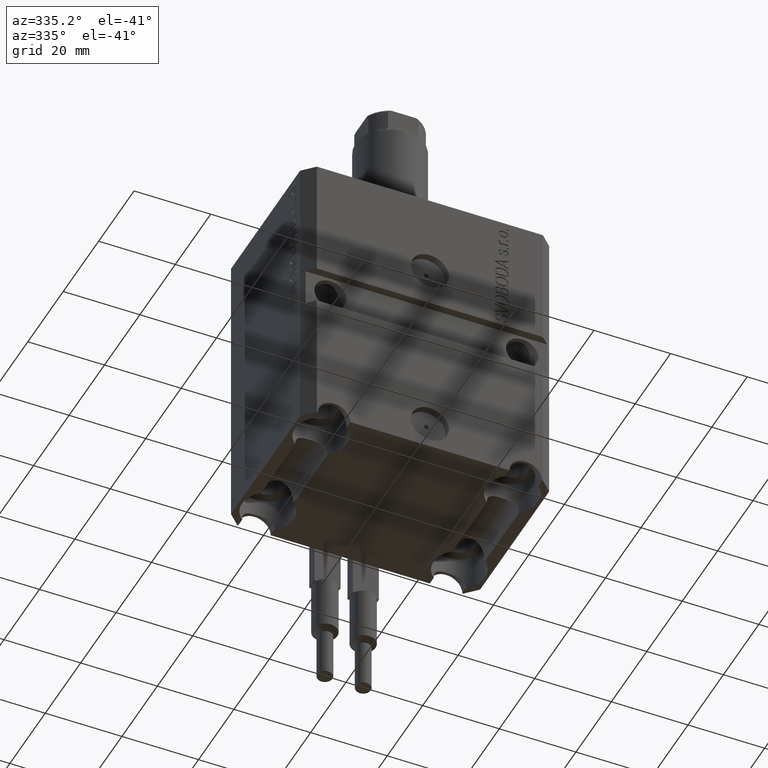
[diagram: clean part render]
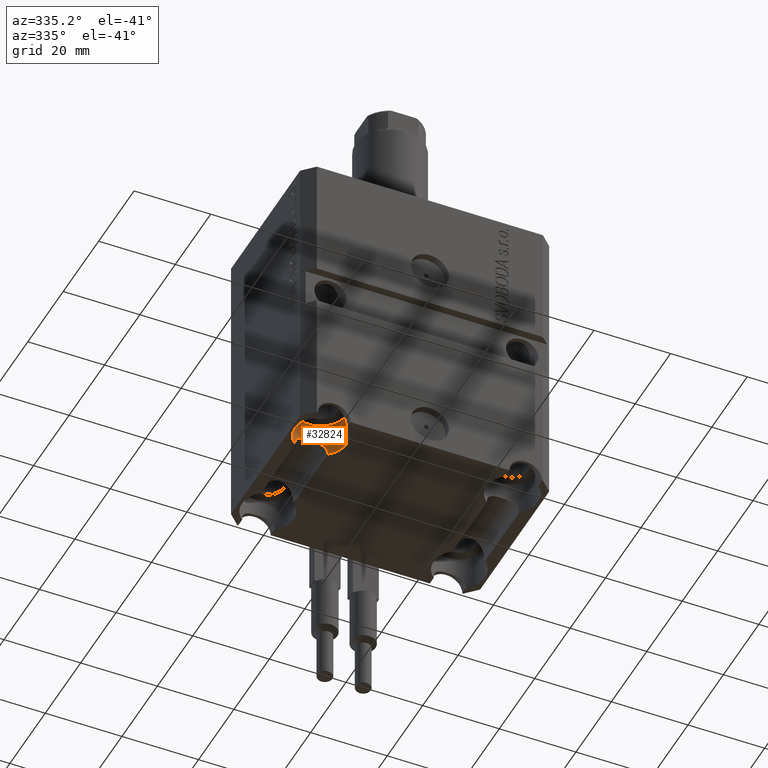
[diagram: same view with one face highlighted and labeled with its STEP entity id]
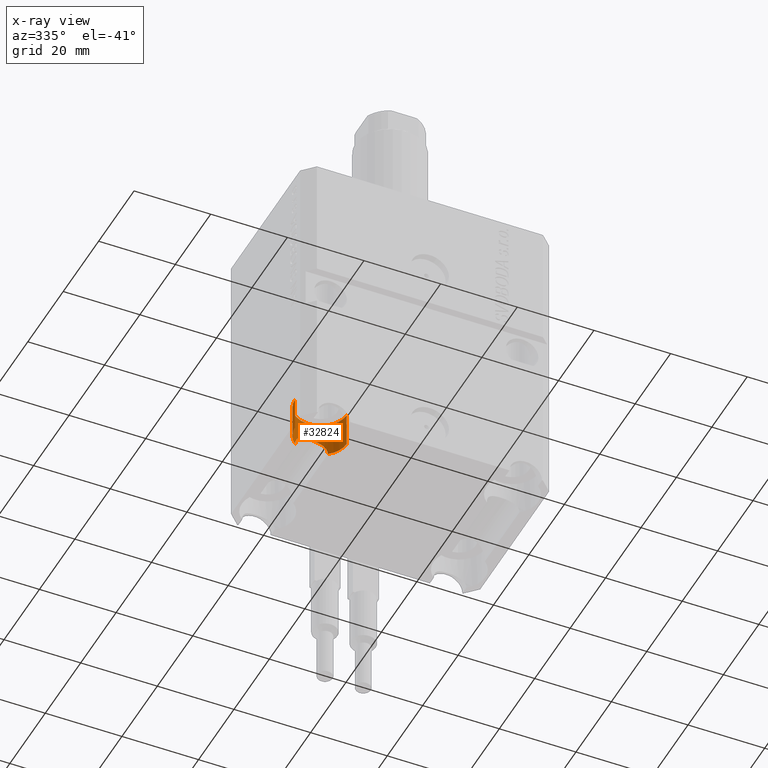
[diagram: x-ray of the same camera — body ghosted, the highlighted face saturated]
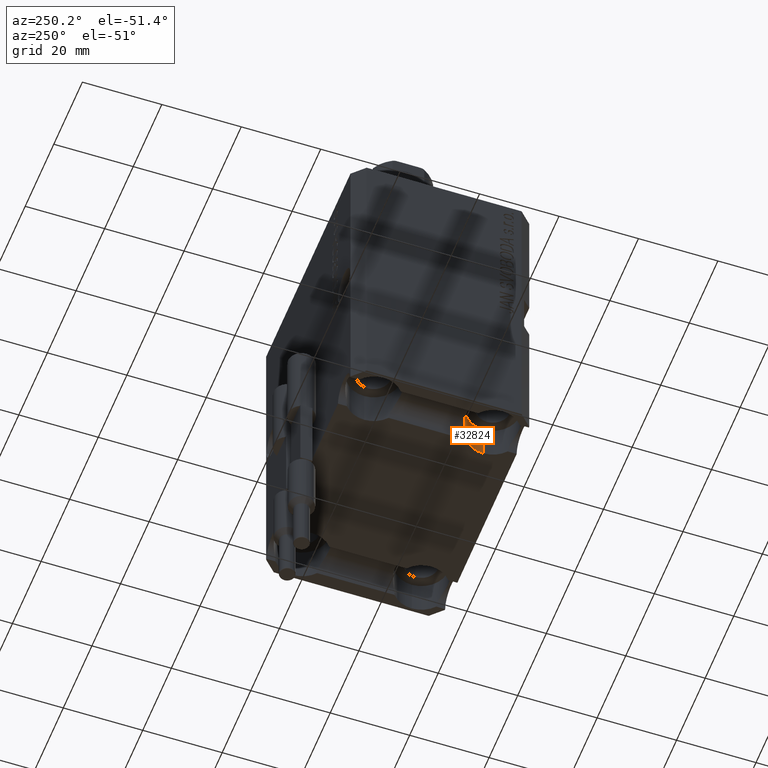
[diagram: same view with one face highlighted and labeled with its STEP entity id]
A machine part, auxiliary view. The second image highlights one B-rep face of the part: STEP entity #32824.
The next image is the same camera in x-ray: the body ghosted, the highlighted face saturated — about 0% of this face is hidden behind the body in this view.
A second angle (auxiliary view) of the same face is appended — the face is thin or edge-on in the first view.
In plain terms, the highlighted cylindrical surface (edge-blend (fillet) strip) has radius 6.75 mm, axis along (-0, -0, -1).
Its self-contained STEP definition (entity closure, byte-faithful):
#301 = CARTESIAN_POINT ( 'NONE',  ( -25.00000000000000355, -15.00000000000000000, -77.00000000000000000 ) ) ;
#1198 = AXIS2_PLACEMENT_3D ( 'NONE', #29679, #2155, #30349 ) ;
#1534 = DIRECTION ( 'NONE',  ( 1.000000000000000000, 0.000000000000000000, 0.000000000000000000 ) ) ;
#1563 = CARTESIAN_POINT ( 'NONE',  ( -20.89200569149565467, -9.643507852874535047, -75.87463990617987974 ) ) ;
#1889 = B_SPLINE_CURVE_WITH_KNOTS ( 'NONE', 3,
 ( #36421, #19007, #32991, #1563, #20571, #37315, #31354, #2461, #34554, #9329, #10237, #13441, #16901, #20800, #41648, #5897, #9768, #38223, #20346, #45079, #13680, #44846, #44393, #30881, #37999, #19896, #27200, #10003, #27672, #30434, #37537, #33876, #2685, #12999 ),
 .UNSPECIFIED., .F., .F.,
 ( 4, 2, 2, 2, 2, 2, 2, 2, 2, 2, 2, 2, 2, 2, 2, 2, 4 ),
 ( 0.000000000000000000, 0.0008545648006833394400, 0.001709129601366678880, 0.002563694402050018320, 0.003418259202733357760, 0.004272824003416696333, 0.005127388804100036640, 0.005981953604783376080, 0.006836518405466715520, 0.007263800805808384373, 0.007691083206150054093, 0.008545648006833383992, 0.01025477760820006808, 0.01110934240888340752, 0.01196390720956674522, 0.01281847201025008640, 0.01367303681093342410 ),
 .UNSPECIFIED. ) ;
#2155 = DIRECTION ( 'NONE',  ( -0.000000000000000000, -0.000000000000000000, 1.000000000000000000 ) ) ;
#2461 = CARTESIAN_POINT ( 'NONE',  ( -21.62635808325929432, -9.150814048462956762, -74.40085671728226657 ) ) ;
#2685 = CARTESIAN_POINT ( 'NONE',  ( -29.24999999997659827, -9.755955759076792688, -76.70949288175364700 ) ) ;
#2713 = VERTEX_POINT ( 'NONE', #23365 ) ;
#3673 = EDGE_LOOP ( 'NONE', ( #8147, #40319, #16828, #25664, #25153, #7566 ) ) ;
#3729 = DIRECTION ( 'NONE',  ( 1.000000000000000000, 0.000000000000000000, 0.000000000000000000 ) ) ;
#3925 = CARTESIAN_POINT ( 'NONE',  ( -25.00000000000000355, -15.00000000000000000, -68.00000000000000000 ) ) ;
#4657 = LINE ( 'NONE', #36523, #26342 ) ;
#5897 = CARTESIAN_POINT ( 'NONE',  ( -24.42185417675575110, -8.269008632392901958, -72.78001998985968157 ) ) ;
#6919 = FACE_OUTER_BOUND ( 'NONE', #3673, .T. ) ;
#7566 = ORIENTED_EDGE ( 'NONE', *, *, #22903, .F. ) ;
#7661 = CARTESIAN_POINT ( 'NONE',  ( -20.75000000002341594, -9.755955759076794465, -77.00000000000000000 ) ) ;
#7842 = VERTEX_POINT ( 'NONE', #34254 ) ;
#8147 = ORIENTED_EDGE ( 'NONE', *, *, #34989, .F. ) ;
#9329 = CARTESIAN_POINT ( 'NONE',  ( -22.17812037901671118, -8.864470831217326818, -73.81060062998804483 ) ) ;
#9768 = CARTESIAN_POINT ( 'NONE',  ( -24.70420972189264575, -8.250335098515231280, -72.75053221590859209 ) ) ;
#10003 = CARTESIAN_POINT ( 'NONE',  ( -28.67871215735741686, -9.337749977211846186, -74.85450094120052711 ) ) ;
#10237 = CARTESIAN_POINT ( 'NONE',  ( -22.39010252323638994, -8.770297254786918018, -73.63468536815973664 ) ) ;
#11041 = EDGE_CURVE ( 'NONE', #28438, #24438, #44360, .T. ) ;
#12999 = CARTESIAN_POINT ( 'NONE',  ( -29.24999999997659472, -9.755955759076794465, -77.00000000000000000 ) ) ;
#13441 = CARTESIAN_POINT ( 'NONE',  ( -22.84173582148502035, -8.599792435500894783, -73.32865104542833024 ) ) ;
#13607 = CARTESIAN_POINT ( 'NONE',  ( -29.24999999997659472, -9.755955759076794465, -77.00000000000000000 ) ) ;
#13680 = CARTESIAN_POINT ( 'NONE',  ( -25.70698340320889130, -8.285663818736560771, -72.80681513056450171 ) ) ;
#13820 = DIRECTION ( 'NONE',  ( -0.000000000000000000, -0.000000000000000000, 1.000000000000000000 ) ) ;
#14024 = DIRECTION ( 'NONE',  ( -1.000000000000000000, 0.000000000000000000, 0.000000000000000000 ) ) ;
#15219 = DIRECTION ( 'NONE',  ( -0.000000000000000000, -0.000000000000000000, -1.000000000000000000 ) ) ;
#16828 = ORIENTED_EDGE ( 'NONE', *, *, #42446, .T. ) ;
#16901 = CARTESIAN_POINT ( 'NONE',  ( -23.08174660420397117, -8.522930826361234224, -73.19736709359762017 ) ) ;
#17326 = VERTEX_POINT ( 'NONE', #7661 ) ;
#19007 = CARTESIAN_POINT ( 'NONE',  ( -20.75000000002341949, -9.755955759076792688, -76.71009799152882636 ) ) ;
#19896 = CARTESIAN_POINT ( 'NONE',  ( -28.20218712366120428, -9.054092496637586862, -74.19261591592753291 ) ) ;
#20206 = CIRCLE ( 'NONE', #34845, 6.750000000041541881 ) ;
#20346 = CARTESIAN_POINT ( 'NONE',  ( -25.28147813201195149, -8.254362098399216308, -72.75691690225701791 ) ) ;
#20571 = CARTESIAN_POINT ( 'NONE',  ( -20.97675713900064665, -9.578437475966795844, -75.60281154740532372 ) ) ;
#20800 = CARTESIAN_POINT ( 'NONE',  ( -23.59320608363998062, -8.392954363145582519, -72.97996965331982722 ) ) ;
#20916 = DIRECTION ( 'NONE',  ( -0.000000000000000000, -0.000000000000000000, -1.000000000000000000 ) ) ;
#21148 = CYLINDRICAL_SURFACE ( 'NONE', #21885, 6.750000000041545434 ) ;
#21787 = EDGE_CURVE ( 'NONE', #34132, #2713, #20206, .T. ) ;
#21885 = AXIS2_PLACEMENT_3D ( 'NONE', #3925, #20916, #14024 ) ;
#22438 = CIRCLE ( 'NONE', #1198, 6.750000000041541881 ) ;
#22903 = EDGE_CURVE ( 'NONE', #7842, #17326, #22438, .T. ) ;
#23365 = CARTESIAN_POINT ( 'NONE',  ( -31.75000000004154899, -15.00000000000000000, -77.00000000000000000 ) ) ;
#24438 = VERTEX_POINT ( 'NONE', #36129 ) ;
#25153 = ORIENTED_EDGE ( 'NONE', *, *, #25505, .F. ) ;
#25505 = EDGE_CURVE ( 'NONE', #17326, #34132, #1889, .T. ) ;
#25664 = ORIENTED_EDGE ( 'NONE', *, *, #21787, .F. ) ;
#26089 = AXIS2_PLACEMENT_3D ( 'NONE', #32068, #35948, #1534 ) ;
#26342 = VECTOR ( 'NONE', #15219, 1000.000000000000000 ) ;
#27200 = CARTESIAN_POINT ( 'NONE',  ( -28.37607943380651676, -9.152258032891463557, -74.40420012238477909 ) ) ;
#27672 = CARTESIAN_POINT ( 'NONE',  ( -28.80802956309132057, -9.425172318363678414, -75.09285034462941155 ) ) ;
#28438 = VERTEX_POINT ( 'NONE', #39571 ) ;
#29679 = CARTESIAN_POINT ( 'NONE',  ( -25.00000000000000355, -15.00000000000000000, -77.00000000000000000 ) ) ;
#30349 = DIRECTION ( 'NONE',  ( 1.000000000000000000, 0.000000000000000000, 0.000000000000000000 ) ) ;
#30434 = CARTESIAN_POINT ( 'NONE',  ( -29.02227310739388599, -9.577720785236897072, -75.60013285955649565 ) ) ;
#30881 = CARTESIAN_POINT ( 'NONE',  ( -27.17033541369506011, -8.586417356538943224, -73.30345003138967286 ) ) ;
#31354 = CARTESIAN_POINT ( 'NONE',  ( -21.32158593238393962, -9.337517679920530611, -74.85377644835143940 ) ) ;
#32068 = CARTESIAN_POINT ( 'NONE',  ( -25.00000000000000355, -15.00000000000000000, -68.00000000000000000 ) ) ;
#32824 = ADVANCED_FACE ( 'NONE', ( #6919 ), #21148, .F. ) ;
#32991 = CARTESIAN_POINT ( 'NONE',  ( -20.77931889816612454, -9.731843168854668491, -76.42737131045565491 ) ) ;
#33876 = CARTESIAN_POINT ( 'NONE',  ( -29.22056078277069702, -9.731743428534093354, -76.42625595530236637 ) ) ;
#34132 = VERTEX_POINT ( 'NONE', #13607 ) ;
#34254 = CARTESIAN_POINT ( 'NONE',  ( -18.24999999995845812, -15.00000000000000000, -77.00000000000000000 ) ) ;
#34554 = CARTESIAN_POINT ( 'NONE',  ( -21.79750428077123203, -9.054266744578491455, -74.19299196561978249 ) ) ;
#34845 = AXIS2_PLACEMENT_3D ( 'NONE', #301, #13820, #3729 ) ;
#34989 = EDGE_CURVE ( 'NONE', #28438, #7842, #4657, .T. ) ;
#35660 = DIRECTION ( 'NONE',  ( -0.000000000000000000, -0.000000000000000000, -1.000000000000000000 ) ) ;
#35948 = DIRECTION ( 'NONE',  ( -0.000000000000000000, -0.000000000000000000, 1.000000000000000000 ) ) ;
#36104 = LINE ( 'NONE', #36330, #39707 ) ;
#36129 = CARTESIAN_POINT ( 'NONE',  ( -31.75000000004154899, -15.00000000000000000, -68.00000000000000000 ) ) ;
#36330 = CARTESIAN_POINT ( 'NONE',  ( -31.75000000004154899, -15.00000000000000000, -68.00000000000000000 ) ) ;
#36421 = CARTESIAN_POINT ( 'NONE',  ( -20.75000000002341594, -9.755955759076794465, -77.00000000000000000 ) ) ;
#36523 = CARTESIAN_POINT ( 'NONE',  ( -18.24999999995846167, -15.00000000000000000, -68.00000000000000000 ) ) ;
#37315 = CARTESIAN_POINT ( 'NONE',  ( -21.19116480229630284, -9.425719978569699009, -75.09437854562361281 ) ) ;
#37537 = CARTESIAN_POINT ( 'NONE',  ( -29.10748172653942234, -9.643111491733247220, -75.87265381712948908 ) ) ;
#37999 = CARTESIAN_POINT ( 'NONE',  ( -27.63063516956975718, -8.769146747284731092, -73.61859649154382623 ) ) ;
#38223 = CARTESIAN_POINT ( 'NONE',  ( -25.13627237637795986, -8.249839121724832580, -72.74974448727483889 ) ) ;
#39571 = CARTESIAN_POINT ( 'NONE',  ( -18.24999999995845812, -15.00000000000000000, -68.00000000000000000 ) ) ;
#39707 = VECTOR ( 'NONE', #35660, 1000.000000000000000 ) ;
#40319 = ORIENTED_EDGE ( 'NONE', *, *, #11041, .T. ) ;
#41648 = CARTESIAN_POINT ( 'NONE',  ( -23.86779481284832727, -8.339774118100578448, -72.89383447811641759 ) ) ;
#42446 = EDGE_CURVE ( 'NONE', #24438, #2713, #36104, .T. ) ;
#44360 = CIRCLE ( 'NONE', #26089, 6.750000000041541881 ) ;
#44393 = CARTESIAN_POINT ( 'NONE',  ( -26.39825195969116223, -8.391076790372620664, -72.97688232502905237 ) ) ;
#44846 = CARTESIAN_POINT ( 'NONE',  ( -26.12405281686402603, -8.338352395018040042, -72.89153254945361482 ) ) ;
#45079 = CARTESIAN_POINT ( 'NONE',  ( -25.56629627401395410, -8.272283510108959348, -72.78546649755983822 ) ) ;